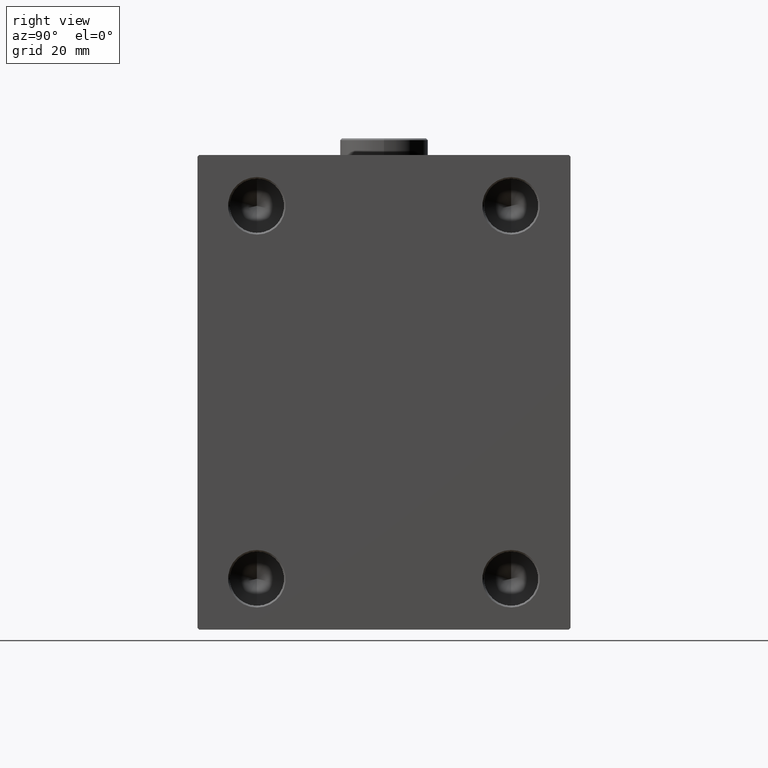
[diagram: clean part render]
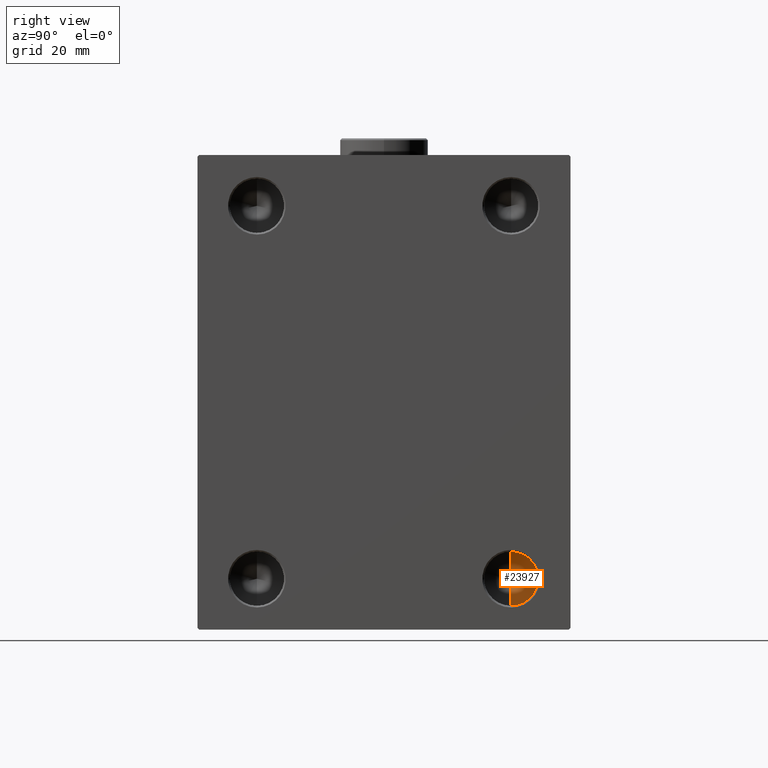
[diagram: same view with one face highlighted and labeled with its STEP entity id]
A machine part, right view. The second image highlights one B-rep face of the part: STEP entity #23927.
In plain terms, the highlighted conical surface has half-angle 59 deg.
Its self-contained STEP definition (entity closure, byte-faithful):
#293 = VECTOR ( 'NONE', #36543, 1000.000000000000000 ) ;
#800 = EDGE_CURVE ( 'NONE', #30345, #10608, #43998, .T. ) ;
#3994 = EDGE_LOOP ( 'NONE', ( #41696, #35775, #10274 ) ) ;
#4276 = DIRECTION ( 'NONE',  ( 0.5150380749100550437, 0.000000000000000000, 0.8571673007021117785 ) ) ;
#4743 = CARTESIAN_POINT ( 'NONE',  ( 73.00000000000000000, 37.50000000000000000, -47.00000000000000000 ) ) ;
#5484 = FACE_OUTER_BOUND ( 'NONE', #3994, .T. ) ;
#6172 = EDGE_CURVE ( 'NONE', #19895, #30345, #29356, .T. ) ;
#7543 = CONICAL_SURFACE ( 'NONE', #33262, 7.999999999999992895, 1.029744258676653423 ) ;
#8294 = DIRECTION ( 'NONE',  ( 0.000000000000000000, 0.000000000000000000, 1.000000000000000000 ) ) ;
#10274 = ORIENTED_EDGE ( 'NONE', *, *, #800, .F. ) ;
#10608 = VERTEX_POINT ( 'NONE', #44985 ) ;
#13485 = CARTESIAN_POINT ( 'NONE',  ( 73.00000000000000000, 37.50000000000000000, -47.00000000000000000 ) ) ;
#15655 = CARTESIAN_POINT ( 'NONE',  ( 73.00000000000000000, 37.50000000000000000, -54.99999999999999289 ) ) ;
#19301 = CARTESIAN_POINT ( 'NONE',  ( 68.19311504777950006, 37.49999999999999289, -54.99999999999999289 ) ) ;
#19528 = DIRECTION ( 'NONE',  ( 0.000000000000000000, 0.000000000000000000, 1.000000000000000000 ) ) ;
#19742 = CARTESIAN_POINT ( 'NONE',  ( 73.00000000000000000, 37.50000000000000000, -54.99999999999999289 ) ) ;
#19743 = AXIS2_PLACEMENT_3D ( 'NONE', #15655, #39382, #8294 ) ;
#19895 = VERTEX_POINT ( 'NONE', #19301 ) ;
#22517 = CARTESIAN_POINT ( 'NONE',  ( 73.00000000000000000, 37.50000000000000000, -62.99999999999998579 ) ) ;
#23927 = ADVANCED_FACE ( 'NONE', ( #5484 ), #7543, .F. ) ;
#25853 = VECTOR ( 'NONE', #4276, 1000.000000000000000 ) ;
#29356 = LINE ( 'NONE', #4743, #25853 ) ;
#30061 = EDGE_CURVE ( 'NONE', #19895, #10608, #35633, .T. ) ;
#30345 = VERTEX_POINT ( 'NONE', #13485 ) ;
#33262 = AXIS2_PLACEMENT_3D ( 'NONE', #19742, #34005, #19528 ) ;
#34005 = DIRECTION ( 'NONE',  ( 1.000000000000000000, -0.000000000000000000, -0.000000000000000000 ) ) ;
#35633 = LINE ( 'NONE', #22517, #293 ) ;
#35775 = ORIENTED_EDGE ( 'NONE', *, *, #30061, .T. ) ;
#36543 = DIRECTION ( 'NONE',  ( 0.5150380749100550437, -1.049727191138617956E-16, -0.8571673007021117785 ) ) ;
#39382 = DIRECTION ( 'NONE',  ( -1.000000000000000000, 0.000000000000000000, 0.000000000000000000 ) ) ;
#41696 = ORIENTED_EDGE ( 'NONE', *, *, #6172, .F. ) ;
#43998 = CIRCLE ( 'NONE', #19743, 7.999999999999992895 ) ;
#44985 = CARTESIAN_POINT ( 'NONE',  ( 73.00000000000000000, 37.50000000000000000, -62.99999999999998579 ) ) ;